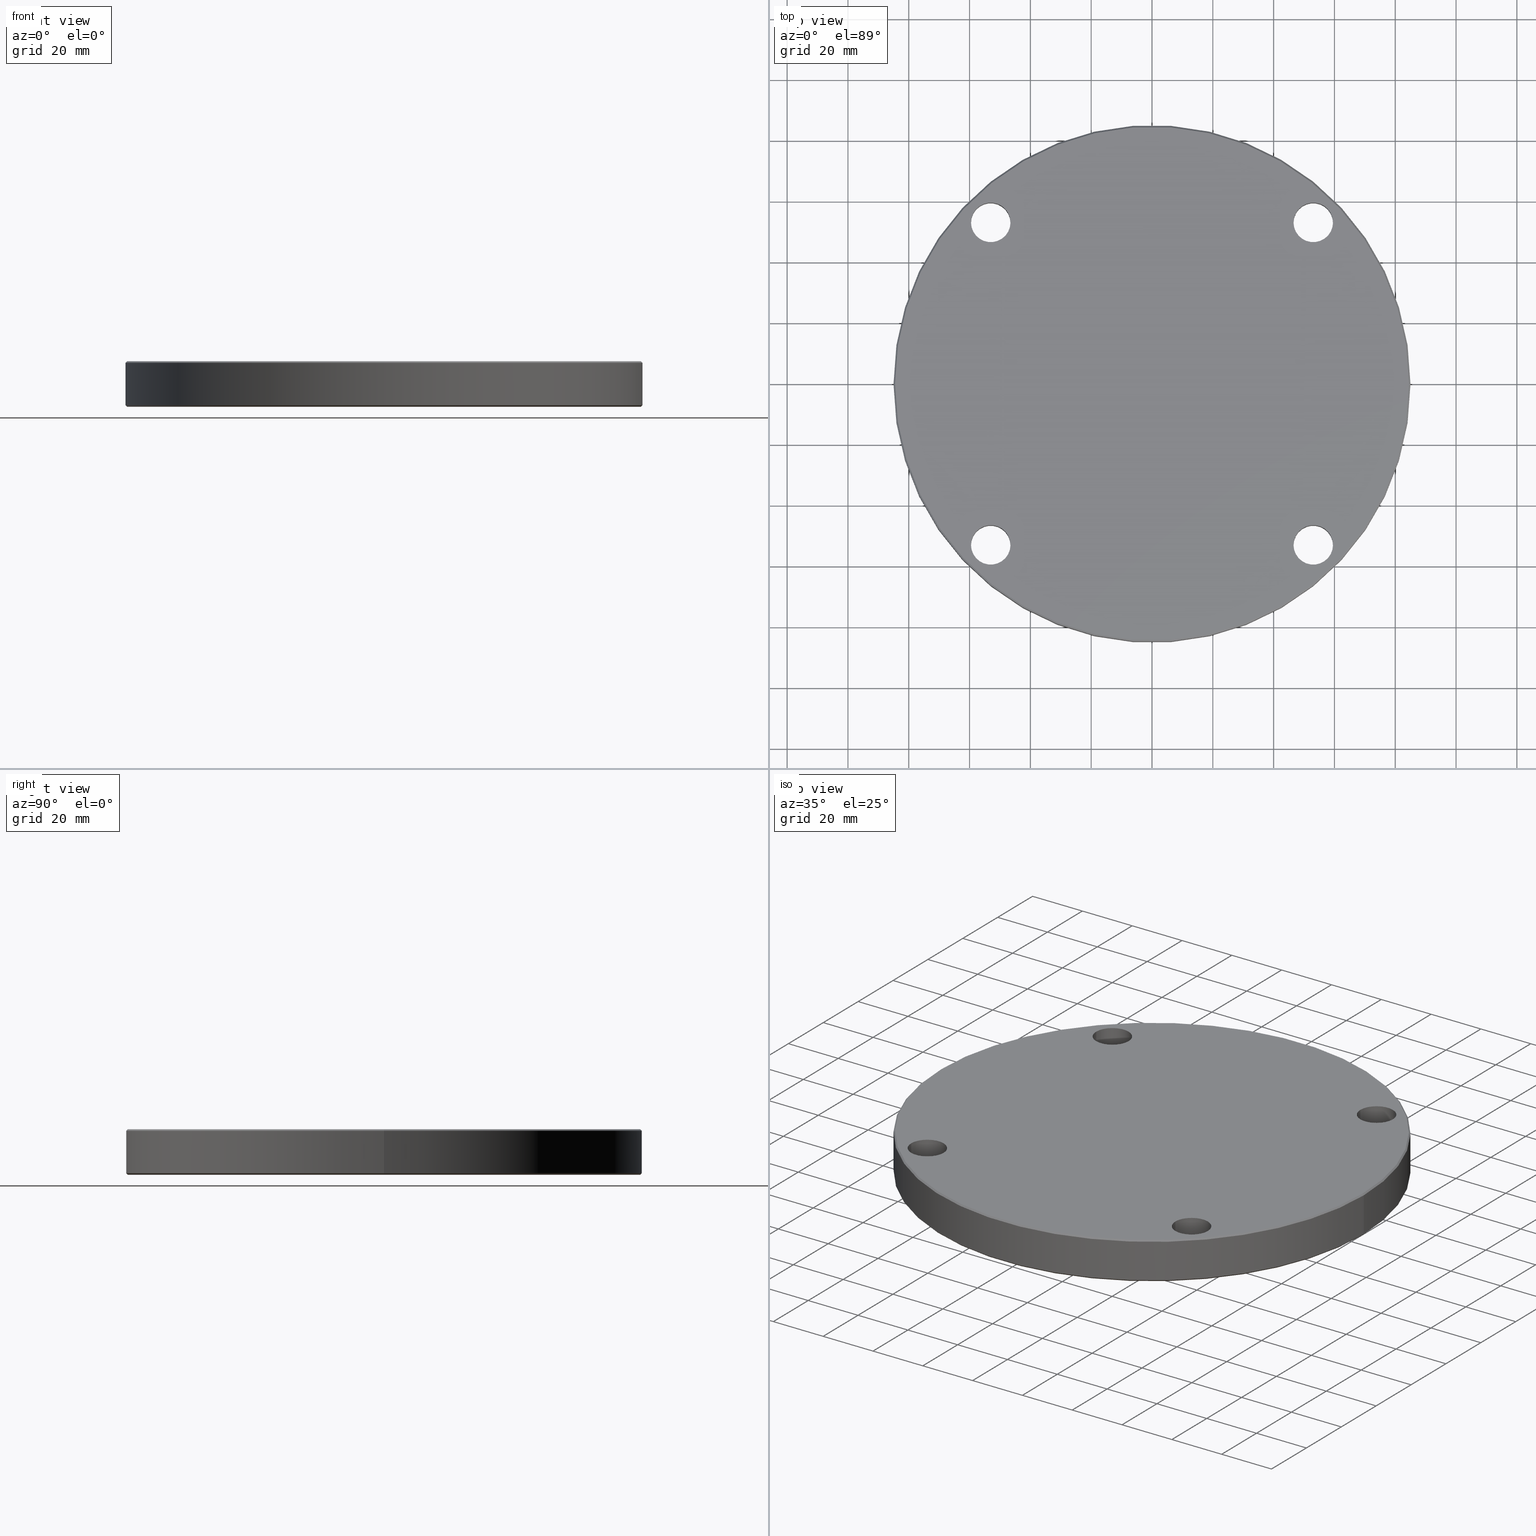
[diagram: canonical four-view strip — front | top / right | iso, engineering-drawing reading convention]
A machine part, canonical four-view strip (front | top / right | iso — engineering-drawing reading convention). The complete STEP part file that produces these views, byte-faithful:
ISO-10303-21;
HEADER;
FILE_DESCRIPTION (( 'STEP AP203' ),
    '1' );
FILE_NAME ('3996-60-20_REV_.step',
    '2026-02-21T22:19:27',
    ( '' ),
    ( '' ),
    'SwSTEP 2.0',
    'SolidWorks 2025',
    '' );
FILE_SCHEMA (( 'CONFIG_CONTROL_DESIGN' ));
ENDSEC;

DATA;
#1 = ORIENTED_EDGE ( 'NONE', *, *, #217, .F. ) ;
#2 = ADVANCED_FACE ( 'NONE', ( #135 ), #247, .T. ) ;
#3 = AXIS2_PLACEMENT_3D ( 'NONE', #526, #42, #129 ) ;
#4 = CARTESIAN_POINT ( 'NONE',  ( -46.53300858899115866, 53.03300858899095971, 15.00000000000000000 ) ) ;
#5 = CIRCLE ( 'NONE', #510, 84.50000000000001421 ) ;
#6 = DIRECTION ( 'NONE',  ( 0.000000000000000000, 0.000000000000000000, 1.000000000000000000 ) ) ;
#7 = CARTESIAN_POINT ( 'NONE',  ( -46.53300858899115866, 53.03300858899095971, 15.00000000000000000 ) ) ;
#8 = CARTESIAN_POINT ( 'NONE',  ( -53.03300858899115156, 53.03300858899095971, 0.000000000000000000 ) ) ;
#9 = FACE_BOUND ( 'NONE', #434, .T. ) ;
#10 = ORIENTED_EDGE ( 'NONE', *, *, #514, .F. ) ;
#11 = DIRECTION ( 'NONE',  ( -0.000000000000000000, -0.000000000000000000, -1.000000000000000000 ) ) ;
#12 = CARTESIAN_POINT ( 'NONE',  ( -53.03300858899114445, -53.03300858899096681, 0.000000000000000000 ) ) ;
#13 = ORIENTED_EDGE ( 'NONE', *, *, #570, .F. ) ;
#14 = DIRECTION ( 'NONE',  ( -0.000000000000000000, -0.000000000000000000, 1.000000000000000000 ) ) ;
#15 = FACE_OUTER_BOUND ( 'NONE', #392, .T. ) ;
#16 = CARTESIAN_POINT ( 'NONE',  ( -53.03300858899114445, -53.03300858899096681, 15.00000000000000000 ) ) ;
#17 = EDGE_CURVE ( 'NONE', #290, #357, #483, .T. ) ;
#18 = DIRECTION ( 'NONE',  ( -0.000000000000000000, -0.000000000000000000, 1.000000000000000000 ) ) ;
#19 = EDGE_CURVE ( 'NONE', #153, #427, #130, .T. ) ;
#20 = PRODUCT_DEFINITION_FORMATION_WITH_SPECIFIED_SOURCE ( 'ANY', '', #74, .NOT_KNOWN. ) ;
#21 = CARTESIAN_POINT ( 'NONE',  ( 0.000000000000000000, 0.000000000000000000, 0.000000000000000000 ) ) ;
#22 = ORIENTED_EDGE ( 'NONE', *, *, #217, .T. ) ;
#23 = APPLICATION_PROTOCOL_DEFINITION ( 'international standard', 'config_control_design', 1994, #160 ) ;
#24 = ORIENTED_EDGE ( 'NONE', *, *, #351, .F. ) ;
#25 = DATE_AND_TIME ( #549, #439 ) ;
#26 = LINE ( 'NONE', #326, #282 ) ;
#27 = EDGE_LOOP ( 'NONE', ( #63, #497, #79, #339 ) ) ;
#28 = CYLINDRICAL_SURFACE ( 'NONE', #192, 6.499999999999999112 ) ;
#29 = CARTESIAN_POINT ( 'NONE',  ( 85.00000000000001421, 1.040949779275250495E-14, 0.5000000000000004441 ) ) ;
#30 = ORIENTED_EDGE ( 'NONE', *, *, #406, .F. ) ;
#31 = CARTESIAN_POINT ( 'NONE',  ( -84.50000000000001421, 1.037888162277381958E-14, 0.000000000000000000 ) ) ;
#32 = EDGE_CURVE ( 'NONE', #530, #472, #394, .T. ) ;
#33 = ORIENTED_EDGE ( 'NONE', *, *, #244, .T. ) ;
#34 = AXIS2_PLACEMENT_3D ( 'NONE', #499, #396, #535 ) ;
#35 = CIRCLE ( 'NONE', #398, 6.499999999999999112 ) ;
#36 = VECTOR ( 'NONE', #11, 1000.000000000000000 ) ;
#37 = DIRECTION ( 'NONE',  ( -0.000000000000000000, -0.000000000000000000, 1.000000000000000000 ) ) ;
#38 = ORIENTED_EDGE ( 'NONE', *, *, #428, .F. ) ;
#39 = CC_DESIGN_PERSON_AND_ORGANIZATION_ASSIGNMENT ( #378, #372, ( #20 ) ) ;
#40 = CARTESIAN_POINT ( 'NONE',  ( -53.03300858899114445, -53.03300858899096681, 15.00000000000000000 ) ) ;
#41 = EDGE_CURVE ( 'NONE', #194, #540, #301, .T. ) ;
#42 = DIRECTION ( 'NONE',  ( 0.000000000000000000, 0.000000000000000000, -1.000000000000000000 ) ) ;
#43 = CARTESIAN_POINT ( 'NONE',  ( -84.49999999999998579, 0.000000000000000000, 15.00000000000000000 ) ) ;
#44 = CARTESIAN_POINT ( 'NONE',  ( 53.03300858899114445, 53.03300858899096681, 0.000000000000000000 ) ) ;
#45 = CIRCLE ( 'NONE', #374, 84.49999999999998579 ) ;
#46 = DIRECTION ( 'NONE',  ( -0.000000000000000000, -0.000000000000000000, -1.000000000000000000 ) ) ;
#47 = DIRECTION ( 'NONE',  ( 0.000000000000000000, 0.000000000000000000, 1.000000000000000000 ) ) ;
#48 = DIRECTION ( 'NONE',  ( 1.000000000000000000, 0.000000000000000000, 0.000000000000000000 ) ) ;
#49 = DIRECTION ( 'NONE',  ( 1.000000000000000000, 0.000000000000000000, 0.000000000000000000 ) ) ;
#50 = DIRECTION ( 'NONE',  ( 0.000000000000000000, 0.000000000000000000, 1.000000000000000000 ) ) ;
#51 = DIRECTION ( 'NONE',  ( 1.000000000000000000, 0.000000000000000000, 0.000000000000000000 ) ) ;
#52 = DIRECTION ( 'NONE',  ( -0.000000000000000000, -0.000000000000000000, 1.000000000000000000 ) ) ;
#53 = CIRCLE ( 'NONE', #304, 84.49999999999998579 ) ;
#54 = DIRECTION ( 'NONE',  ( 1.000000000000000000, 0.000000000000000000, 0.000000000000000000 ) ) ;
#55 = EDGE_CURVE ( 'NONE', #176, #548, #219, .T. ) ;
#56 = DIRECTION ( 'NONE',  ( 1.000000000000000000, 0.000000000000000000, 0.000000000000000000 ) ) ;
#57 = EDGE_CURVE ( 'NONE', #371, #569, #544, .T. ) ;
#58 = DIRECTION ( 'NONE',  ( 1.000000000000000000, 0.000000000000000000, 0.000000000000000000 ) ) ;
#59 = PERSON_AND_ORGANIZATION ( #163, #528 ) ;
#60 = DATE_AND_TIME ( #515, #440 ) ;
#61 = AXIS2_PLACEMENT_3D ( 'NONE', #101, #97, #276 ) ;
#62 = CC_DESIGN_APPROVAL ( #271, ( #362 ) ) ;
#63 = ORIENTED_EDGE ( 'NONE', *, *, #280, .F. ) ;
#64 = DIRECTION ( 'NONE',  ( 0.000000000000000000, 0.000000000000000000, 1.000000000000000000 ) ) ;
#65 = ORIENTED_EDGE ( 'NONE', *, *, #221, .T. ) ;
#66 = APPROVAL_ROLE ( '' ) ;
#67 = DIRECTION ( 'NONE',  ( -0.000000000000000000, -0.000000000000000000, 1.000000000000000000 ) ) ;
#68 = EDGE_LOOP ( 'NONE', ( #65, #121, #33, #10 ) ) ;
#69 = DATE_TIME_ROLE ( 'creation_date' ) ;
#70 = CARTESIAN_POINT ( 'NONE',  ( 0.000000000000000000, 0.000000000000000000, 14.49999999999995737 ) ) ;
#71 = EDGE_LOOP ( 'NONE', ( #330, #556, #465, #38 ) ) ;
#72 = FACE_BOUND ( 'NONE', #82, .T. ) ;
#73 = EDGE_LOOP ( 'NONE', ( #148, #113, #337, #299 ) ) ;
#74 = PRODUCT ( '3996-60-20_REV_', '3996-60-20_REV_', '', ( #332 ) ) ;
#75 = LINE ( 'NONE', #4, #266 ) ;
#76 = EDGE_CURVE ( 'NONE', #424, #530, #45, .T. ) ;
#77 = EDGE_LOOP ( 'NONE', ( #334, #482, #211, #347 ) ) ;
#78 = DIRECTION ( 'NONE',  ( 1.000000000000000000, 0.000000000000000000, 0.000000000000000000 ) ) ;
#79 = ORIENTED_EDGE ( 'NONE', *, *, #474, .T. ) ;
#80 = EDGE_CURVE ( 'NONE', #424, #344, #355, .T. ) ;
#81 = DIRECTION ( 'NONE',  ( 0.000000000000000000, 0.000000000000000000, 1.000000000000000000 ) ) ;
#82 = EDGE_LOOP ( 'NONE', ( #161, #109 ) ) ;
#83 = CARTESIAN_POINT ( 'NONE',  ( 59.53300858899152104, -53.03300858899059023, 15.00000000000000000 ) ) ;
#84 =( LENGTH_UNIT ( ) NAMED_UNIT ( * ) SI_UNIT ( .MILLI., .METRE. ) );
#85 = DIRECTION ( 'NONE',  ( 0.000000000000000000, 0.000000000000000000, 1.000000000000000000 ) ) ;
#86 = CIRCLE ( 'NONE', #418, 6.499999999999999112 ) ;
#87 = VECTOR ( 'NONE', #546, 1000.000000000000114 ) ;
#88 = APPROVAL_PERSON_ORGANIZATION ( #246, #303, #66 ) ;
#89 = UNCERTAINTY_MEASURE_WITH_UNIT (LENGTH_MEASURE( 1.000000000000000082E-05 ), #84, 'distance_accuracy_value', 'NONE');
#90 = ORIENTED_EDGE ( 'NONE', *, *, #413, .F. ) ;
#91 = LINE ( 'NONE', #412, #249 ) ;
#92 = EDGE_CURVE ( 'NONE', #241, #376, #447, .T. ) ;
#93 = CARTESIAN_POINT ( 'NONE',  ( -59.53300858899114445, -53.03300858899096681, 15.00000000000000000 ) ) ;
#94 = CARTESIAN_POINT ( 'NONE',  ( -85.00000000000001421, 1.040949779275250495E-14, 0.5000000000000004441 ) ) ;
#95 = MANIFOLD_SOLID_BREP ( 'Chamfer1', #340 ) ;
#96 = EDGE_CURVE ( 'NONE', #385, #315, #86, .T. ) ;
#97 = DIRECTION ( 'NONE',  ( -0.000000000000000000, -0.000000000000000000, 1.000000000000000000 ) ) ;
#98 = CARTESIAN_POINT ( 'NONE',  ( -53.03300858899114445, -53.03300858899096681, 0.000000000000000000 ) ) ;
#99 = ADVANCED_FACE ( 'NONE', ( #305 ), #494, .T. ) ;
#100 = CIRCLE ( 'NONE', #322, 85.00000000000001421 ) ;
#101 = CARTESIAN_POINT ( 'NONE',  ( 53.03300858899152104, -53.03300858899059023, 15.00000000000000000 ) ) ;
#102 = PERSON_AND_ORGANIZATION_ROLE ( 'classification_officer' ) ;
#103 = DIRECTION ( 'NONE',  ( 0.000000000000000000, 0.000000000000000000, -1.000000000000000000 ) ) ;
#104 = ORIENTED_EDGE ( 'NONE', *, *, #547, .T. ) ;
#105 = PERSON_AND_ORGANIZATION ( #163, #528 ) ;
#106 = AXIS2_PLACEMENT_3D ( 'NONE', #414, #18, #54 ) ;
#107 = AXIS2_PLACEMENT_3D ( 'NONE', #40, #170, #444 ) ;
#108 = ORIENTED_EDGE ( 'NONE', *, *, #451, .T. ) ;
#109 = ORIENTED_EDGE ( 'NONE', *, *, #55, .F. ) ;
#110 = PERSON_AND_ORGANIZATION ( #163, #528 ) ;
#111 = CARTESIAN_POINT ( 'NONE',  ( -53.03300858899114445, -53.03300858899096681, 15.00000000000000000 ) ) ;
#112 = PRODUCT_DEFINITION ( 'UNKNOWN', '', #20, #452 ) ;
#113 = ORIENTED_EDGE ( 'NONE', *, *, #567, .T. ) ;
#114 = FACE_BOUND ( 'NONE', #478, .T. ) ;
#115 = VECTOR ( 'NONE', #310, 1000.000000000000000 ) ;
#116 = ORIENTED_EDGE ( 'NONE', *, *, #41, .T. ) ;
#117 = AXIS2_PLACEMENT_3D ( 'NONE', #454, #502, #275 ) ;
#118 = LINE ( 'NONE', #83, #437 ) ;
#119 = VERTEX_POINT ( 'NONE', #155 ) ;
#120 = CARTESIAN_POINT ( 'NONE',  ( 53.03300858899152104, -53.03300858899059023, 15.00000000000000000 ) ) ;
#121 = ORIENTED_EDGE ( 'NONE', *, *, #531, .T. ) ;
#122 = DIRECTION ( 'NONE',  ( 1.000000000000000000, 0.000000000000000000, 0.000000000000000000 ) ) ;
#123 = CARTESIAN_POINT ( 'NONE',  ( 53.03300858899114445, 53.03300858899096681, 15.00000000000000000 ) ) ;
#124 = CIRCLE ( 'NONE', #496, 6.499999999999999112 ) ;
#125 = DIRECTION ( 'NONE',  ( 1.000000000000000000, 0.000000000000000000, 0.000000000000000000 ) ) ;
#126 = ORIENTED_EDGE ( 'NONE', *, *, #474, .F. ) ;
#127 = DIRECTION ( 'NONE',  ( -0.000000000000000000, -0.000000000000000000, 1.000000000000000000 ) ) ;
#128 = DIRECTION ( 'NONE',  ( 0.7071067811865378028, 8.659560562354814529E-17, -0.7071067811865573427 ) ) ;
#129 = DIRECTION ( 'NONE',  ( -1.000000000000000000, 0.000000000000000000, 0.000000000000000000 ) ) ;
#130 = CIRCLE ( 'NONE', #142, 6.499999999999999112 ) ;
#131 = EDGE_CURVE ( 'NONE', #153, #290, #26, .T. ) ;
#132 = CIRCLE ( 'NONE', #107, 6.499999999999999112 ) ;
#133 = CARTESIAN_POINT ( 'NONE',  ( 53.03300858899114445, 53.03300858899096681, 15.00000000000000000 ) ) ;
#134 = AXIS2_PLACEMENT_3D ( 'NONE', #264, #178, #56 ) ;
#135 = FACE_OUTER_BOUND ( 'NONE', #77, .T. ) ;
#136 = CARTESIAN_POINT ( 'NONE',  ( 0.000000000000000000, 0.000000000000000000, 0.000000000000000000 ) ) ;
#137 = ADVANCED_FACE ( 'NONE', ( #455 ), #336, .F. ) ;
#138 = DIRECTION ( 'NONE',  ( 0.000000000000000000, 0.000000000000000000, 1.000000000000000000 ) ) ;
#139 = ADVANCED_FACE ( 'NONE', ( #409 ), #317, .F. ) ;
#140 = FACE_OUTER_BOUND ( 'NONE', #328, .T. ) ;
#141 = CYLINDRICAL_SURFACE ( 'NONE', #342, 6.499999999999999112 ) ;
#142 = AXIS2_PLACEMENT_3D ( 'NONE', #44, #85, #308 ) ;
#143 = PERSON_AND_ORGANIZATION ( #163, #528 ) ;
#144 = AXIS2_PLACEMENT_3D ( 'NONE', #120, #37, #78 ) ;
#145 = VECTOR ( 'NONE', #127, 1000.000000000000000 ) ;
#146 = DIRECTION ( 'NONE',  ( -0.000000000000000000, -0.000000000000000000, 1.000000000000000000 ) ) ;
#147 = ORIENTED_EDGE ( 'NONE', *, *, #351, .T. ) ;
#148 = ORIENTED_EDGE ( 'NONE', *, *, #507, .F. ) ;
#149 = CALENDAR_DATE ( 2026, 22, 2 ) ;
#150 = ORIENTED_EDGE ( 'NONE', *, *, #76, .F. ) ;
#151 = DIRECTION ( 'NONE',  ( 1.000000000000000000, 0.000000000000000000, 0.000000000000000000 ) ) ;
#152 = AXIS2_PLACEMENT_3D ( 'NONE', #565, #81, #125 ) ;
#153 = VERTEX_POINT ( 'NONE', #462 ) ;
#154 = PERSON_AND_ORGANIZATION_ROLE ( 'creator' ) ;
#155 = CARTESIAN_POINT ( 'NONE',  ( -46.53300858899115156, -53.03300858899096681, 0.000000000000000000 ) ) ;
#156 = EDGE_CURVE ( 'NONE', #385, #176, #382, .T. ) ;
#157 = ORIENTED_EDGE ( 'NONE', *, *, #80, .T. ) ;
#158 = ADVANCED_FACE ( 'NONE', ( #384 ), #320, .F. ) ;
#159 = CARTESIAN_POINT ( 'NONE',  ( 0.000000000000000000, 0.000000000000000000, 0.5000000000000004441 ) ) ;
#160 = APPLICATION_CONTEXT ( 'configuration controlled 3d designs of mechanical parts and assemblies' ) ;
#161 = ORIENTED_EDGE ( 'NONE', *, *, #363, .F. ) ;
#162 = DIRECTION ( 'NONE',  ( 0.000000000000000000, 0.000000000000000000, 1.000000000000000000 ) ) ;
#163 = PERSON ( 'UNSPECIFIED', 'UNSPECIFIED', 'UNSPECIFIED', ('UNSPECIFIED'), ('UNSPECIFIED'), ('UNSPECIFIED') ) ;
#164 = VERTEX_POINT ( 'NONE', #93 ) ;
#165 = CC_DESIGN_APPROVAL ( #303, ( #20 ) ) ;
#166 = DIRECTION ( 'NONE',  ( 1.000000000000000000, 0.000000000000000000, 0.000000000000000000 ) ) ;
#167 = EDGE_LOOP ( 'NONE', ( #533, #560 ) ) ;
#168 = CARTESIAN_POINT ( 'NONE',  ( -53.03300858899115156, 53.03300858899095971, 15.00000000000000000 ) ) ;
#169 = CARTESIAN_POINT ( 'NONE',  ( -84.49999999999998579, 0.000000000000000000, 15.00000000000000000 ) ) ;
#170 = DIRECTION ( 'NONE',  ( -0.000000000000000000, -0.000000000000000000, 1.000000000000000000 ) ) ;
#171 = VERTEX_POINT ( 'NONE', #228 ) ;
#172 = CIRCLE ( 'NONE', #152, 6.499999999999999112 ) ;
#173 = DIRECTION ( 'NONE',  ( -0.000000000000000000, -0.000000000000000000, 1.000000000000000000 ) ) ;
#174 = ORIENTED_EDGE ( 'NONE', *, *, #387, .T. ) ;
#175 = DIRECTION ( 'NONE',  ( 1.000000000000000000, 0.000000000000000000, 0.000000000000000000 ) ) ;
#176 = VERTEX_POINT ( 'NONE', #243 ) ;
#177 = ADVANCED_FACE ( 'NONE', ( #473 ), #545, .T. ) ;
#178 = DIRECTION ( 'NONE',  ( 0.000000000000000000, 0.000000000000000000, -1.000000000000000000 ) ) ;
#179 = EDGE_LOOP ( 'NONE', ( #174, #443 ) ) ;
#180 = AXIS2_PLACEMENT_3D ( 'NONE', #12, #186, #58 ) ;
#181 = AXIS2_PLACEMENT_3D ( 'NONE', #98, #498, #48 ) ;
#182 = CARTESIAN_POINT ( 'NONE',  ( -59.53300858899114445, -53.03300858899096681, 0.000000000000000000 ) ) ;
#183 = AXIS2_PLACEMENT_3D ( 'NONE', #133, #233, #175 ) ;
#184 = CARTESIAN_POINT ( 'NONE',  ( 0.000000000000000000, 0.000000000000000000, 15.00000000000000000 ) ) ;
#185 = FACE_OUTER_BOUND ( 'NONE', #68, .T. ) ;
#186 = DIRECTION ( 'NONE',  ( 0.000000000000000000, 0.000000000000000000, 1.000000000000000000 ) ) ;
#187 = ORIENTED_EDGE ( 'NONE', *, *, #41, .F. ) ;
#188 = COORDINATED_UNIVERSAL_TIME_OFFSET ( 10, 0, .AHEAD. ) ;
#189 = DIRECTION ( 'NONE',  ( 1.000000000000000000, 0.000000000000000000, 0.000000000000000000 ) ) ;
#190 = AXIS2_PLACEMENT_3D ( 'NONE', #257, #405, #402 ) ;
#191 = SHAPE_DEFINITION_REPRESENTATION ( #425, #403 ) ;
#192 = AXIS2_PLACEMENT_3D ( 'NONE', #234, #369, #426 ) ;
#193 = CIRCLE ( 'NONE', #183, 6.499999999999999112 ) ;
#194 = VERTEX_POINT ( 'NONE', #201 ) ;
#195 = APPLICATION_PROTOCOL_DEFINITION ( 'international standard', 'config_control_design', 1994, #232 ) ;
#196 = VERTEX_POINT ( 'NONE', #555 ) ;
#197 = COORDINATED_UNIVERSAL_TIME_OFFSET ( 10, 0, .AHEAD. ) ;
#198 = ORIENTED_EDGE ( 'NONE', *, *, #387, .F. ) ;
#199 = ADVANCED_FACE ( 'NONE', ( #431 ), #28, .F. ) ;
#200 = SECURITY_CLASSIFICATION_LEVEL ( 'unclassified' ) ;
#201 = CARTESIAN_POINT ( 'NONE',  ( 46.53300858899152104, -53.03300858899059023, 0.000000000000000000 ) ) ;
#202 = AXIS2_PLACEMENT_3D ( 'NONE', #309, #46, #364 ) ;
#203 = ADVANCED_FACE ( 'NONE', ( #15 ), #141, .F. ) ;
#204 = ORIENTED_EDGE ( 'NONE', *, *, #260, .T. ) ;
#205 = CARTESIAN_POINT ( 'NONE',  ( 46.53300858899115156, 53.03300858899096681, 15.00000000000000000 ) ) ;
#206 = EDGE_LOOP ( 'NONE', ( #566, #513 ) ) ;
#207 = CARTESIAN_POINT ( 'NONE',  ( 0.000000000000000000, 0.000000000000000000, 0.5000000000000004441 ) ) ;
#208 = ORIENTED_EDGE ( 'NONE', *, *, #262, .F. ) ;
#209 = CARTESIAN_POINT ( 'NONE',  ( 0.000000000000000000, 0.000000000000000000, 15.00000000000000000 ) ) ;
#210 = VECTOR ( 'NONE', #128, 1000.000000000000000 ) ;
#211 = ORIENTED_EDGE ( 'NONE', *, *, #221, .F. ) ;
#212 = CC_DESIGN_APPROVAL ( #490, ( #112 ) ) ;
#213 = DIRECTION ( 'NONE',  ( -0.000000000000000000, -0.000000000000000000, 1.000000000000000000 ) ) ;
#214 = DIRECTION ( 'NONE',  ( 1.000000000000000000, 0.000000000000000000, 0.000000000000000000 ) ) ;
#215 = FACE_BOUND ( 'NONE', #294, .T. ) ;
#216 = ORIENTED_EDGE ( 'NONE', *, *, #428, .T. ) ;
#217 = EDGE_CURVE ( 'NONE', #553, #119, #380, .T. ) ;
#218 = CARTESIAN_POINT ( 'NONE',  ( 46.53300858899115156, 53.03300858899096681, 0.000000000000000000 ) ) ;
#219 = CIRCLE ( 'NONE', #34, 6.499999999999999112 ) ;
#220 = DIRECTION ( 'NONE',  ( 1.000000000000000000, 0.000000000000000000, 0.000000000000000000 ) ) ;
#221 = EDGE_CURVE ( 'NONE', #344, #472, #100, .T. ) ;
#222 = CYLINDRICAL_SURFACE ( 'NONE', #430, 6.499999999999999112 ) ;
#223 = EDGE_CURVE ( 'NONE', #540, #194, #35, .T. ) ;
#224 = DIRECTION ( 'NONE',  ( -0.000000000000000000, -0.000000000000000000, 1.000000000000000000 ) ) ;
#225 = DIRECTION ( 'NONE',  ( 1.000000000000000000, 0.000000000000000000, 0.000000000000000000 ) ) ;
#226 = ORIENTED_EDGE ( 'NONE', *, *, #17, .T. ) ;
#227 = CARTESIAN_POINT ( 'NONE',  ( 85.00000000000001421, 1.040949779275250495E-14, 14.49999999999995737 ) ) ;
#228 = CARTESIAN_POINT ( 'NONE',  ( -85.00000000000001421, 0.000000000000000000, 0.5000000000000004441 ) ) ;
#229 = APPROVAL_PERSON_ORGANIZATION ( #143, #490, #463 ) ;
#230 = FACE_OUTER_BOUND ( 'NONE', #71, .T. ) ;
#231 = DIRECTION ( 'NONE',  ( 1.000000000000000000, 0.000000000000000000, 0.000000000000000000 ) ) ;
#232 = APPLICATION_CONTEXT ( 'configuration controlled 3d designs of mechanical parts and assemblies' ) ;
#233 = DIRECTION ( 'NONE',  ( -0.000000000000000000, -0.000000000000000000, 1.000000000000000000 ) ) ;
#234 = CARTESIAN_POINT ( 'NONE',  ( 53.03300858899114445, 53.03300858899096681, 15.00000000000000000 ) ) ;
#235 = PERSON_AND_ORGANIZATION ( #163, #528 ) ;
#236 = AXIS2_PLACEMENT_3D ( 'NONE', #488, #297, #559 ) ;
#237 = EDGE_CURVE ( 'NONE', #427, #357, #248, .T. ) ;
#238 = ORIENTED_EDGE ( 'NONE', *, *, #363, .T. ) ;
#239 = APPROVAL_STATUS ( 'not_yet_approved' ) ;
#240 = CC_DESIGN_DATE_AND_TIME_ASSIGNMENT ( #25, #69, ( #112 ) ) ;
#241 = VERTEX_POINT ( 'NONE', #273 ) ;
#242 = COORDINATED_UNIVERSAL_TIME_OFFSET ( 10, 0, .AHEAD. ) ;
#243 = CARTESIAN_POINT ( 'NONE',  ( -59.53300858899115156, 53.03300858899095971, 15.00000000000000000 ) ) ;
#244 = EDGE_CURVE ( 'NONE', #296, #171, #293, .T. ) ;
#245 = ORIENTED_EDGE ( 'NONE', *, *, #32, .F. ) ;
#246 = PERSON_AND_ORGANIZATION ( #163, #528 ) ;
#247 = CONICAL_SURFACE ( 'NONE', #3, 84.49999999999998579, 0.7853981633974346233 ) ;
#248 = LINE ( 'NONE', #205, #508 ) ;
#249 = VECTOR ( 'NONE', #52, 1000.000000000000000 ) ;
#250 = ORIENTED_EDGE ( 'NONE', *, *, #451, .F. ) ;
#251 = DIRECTION ( 'NONE',  ( -0.000000000000000000, -0.000000000000000000, -1.000000000000000000 ) ) ;
#252 = EDGE_LOOP ( 'NONE', ( #1, #379, #558, #126 ) ) ;
#253 = PLANE ( 'NONE',  #312 ) ;
#254 = ORIENTED_EDGE ( 'NONE', *, *, #567, .F. ) ;
#255 = CARTESIAN_POINT ( 'NONE',  ( 59.53300858899114445, 53.03300858899096681, 15.00000000000000000 ) ) ;
#256 = AXIS2_PLACEMENT_3D ( 'NONE', #442, #438, #386 ) ;
#257 = CARTESIAN_POINT ( 'NONE',  ( 0.000000000000000000, 0.000000000000000000, 0.000000000000000000 ) ) ;
#258 = LINE ( 'NONE', #349, #520 ) ;
#259 = ORIENTED_EDGE ( 'NONE', *, *, #319, .F. ) ;
#260 = EDGE_CURVE ( 'NONE', #241, #296, #459, .T. ) ;
#261 = CYLINDRICAL_SURFACE ( 'NONE', #256, 6.499999999999999112 ) ;
#262 = EDGE_CURVE ( 'NONE', #569, #371, #302, .T. ) ;
#263 = EDGE_LOOP ( 'NONE', ( #187, #327, #366, #24 ) ) ;
#264 = CARTESIAN_POINT ( 'NONE',  ( 0.000000000000000000, 0.000000000000000000, 14.49999999999995737 ) ) ;
#265 = DIRECTION ( 'NONE',  ( -0.000000000000000000, -0.000000000000000000, 1.000000000000000000 ) ) ;
#266 = VECTOR ( 'NONE', #173, 1000.000000000000000 ) ;
#267 = DIRECTION ( 'NONE',  ( 1.000000000000000000, 0.000000000000000000, 0.000000000000000000 ) ) ;
#268 = CARTESIAN_POINT ( 'NONE',  ( 84.49999999999998579, 1.034826545279513264E-14, 15.00000000000000000 ) ) ;
#269 = CYLINDRICAL_SURFACE ( 'NONE', #202, 85.00000000000001421 ) ;
#270 = DIRECTION ( 'NONE',  ( 1.000000000000000000, 0.000000000000000000, 0.000000000000000000 ) ) ;
#271 = APPROVAL ( #288, 'UNSPECIFIED' ) ;
#272 = FACE_OUTER_BOUND ( 'NONE', #27, .T. ) ;
#273 = CARTESIAN_POINT ( 'NONE',  ( 84.50000000000001421, 0.000000000000000000, 0.000000000000000000 ) ) ;
#274 = AXIS2_PLACEMENT_3D ( 'NONE', #278, #373, #270 ) ;
#275 = DIRECTION ( 'NONE',  ( 1.000000000000000000, 0.000000000000000000, -0.000000000000000000 ) ) ;
#276 = DIRECTION ( 'NONE',  ( 1.000000000000000000, 0.000000000000000000, 0.000000000000000000 ) ) ;
#277 = COORDINATED_UNIVERSAL_TIME_OFFSET ( 10, 0, .AHEAD. ) ;
#278 = CARTESIAN_POINT ( 'NONE',  ( 53.03300858899152104, -53.03300858899059023, 15.00000000000000000 ) ) ;
#279 = ORIENTED_EDGE ( 'NONE', *, *, #92, .F. ) ;
#280 = EDGE_CURVE ( 'NONE', #553, #164, #258, .T. ) ;
#281 = ORIENTED_EDGE ( 'NONE', *, *, #57, .F. ) ;
#282 = VECTOR ( 'NONE', #506, 1000.000000000000000 ) ;
#283 = COORDINATED_UNIVERSAL_TIME_OFFSET ( 10, 0, .AHEAD. ) ;
#284 = AXIS2_PLACEMENT_3D ( 'NONE', #111, #67, #231 ) ;
#285 = AXIS2_PLACEMENT_3D ( 'NONE', #207, #295, #479 ) ;
#286 = ORIENTED_EDGE ( 'NONE', *, *, #19, .T. ) ;
#287 = ORIENTED_EDGE ( 'NONE', *, *, #507, .T. ) ;
#288 = APPROVAL_STATUS ( 'not_yet_approved' ) ;
#289 = DIRECTION ( 'NONE',  ( -0.000000000000000000, -0.000000000000000000, 1.000000000000000000 ) ) ;
#290 = VERTEX_POINT ( 'NONE', #255 ) ;
#291 = AXIS2_PLACEMENT_3D ( 'NONE', #453, #224, #220 ) ;
#292 = DIRECTION ( 'NONE',  ( -0.000000000000000000, -0.000000000000000000, 1.000000000000000000 ) ) ;
#293 = CIRCLE ( 'NONE', #484, 85.00000000000001421 ) ;
#294 = EDGE_LOOP ( 'NONE', ( #259, #468 ) ) ;
#295 = DIRECTION ( 'NONE',  ( -0.000000000000000000, -0.000000000000000000, 1.000000000000000000 ) ) ;
#296 = VERTEX_POINT ( 'NONE', #29 ) ;
#297 = DIRECTION ( 'NONE',  ( -0.000000000000000000, -0.000000000000000000, 1.000000000000000000 ) ) ;
#298 = ADVANCED_FACE ( 'NONE', ( #523 ), #261, .F. ) ;
#299 = ORIENTED_EDGE ( 'NONE', *, *, #260, .F. ) ;
#300 = CARTESIAN_POINT ( 'NONE',  ( -46.53300858899115866, 53.03300858899095971, 0.000000000000000000 ) ) ;
#301 = CIRCLE ( 'NONE', #476, 6.499999999999999112 ) ;
#302 = CIRCLE ( 'NONE', #144, 6.499999999999999112 ) ;
#303 = APPROVAL ( #464, 'UNSPECIFIED' ) ;
#304 = AXIS2_PLACEMENT_3D ( 'NONE', #209, #50, #225 ) ;
#305 = FACE_OUTER_BOUND ( 'NONE', #375, .T. ) ;
#306 = EDGE_CURVE ( 'NONE', #164, #196, #495, .T. ) ;
#307 = DIRECTION ( 'NONE',  ( -0.000000000000000000, -0.000000000000000000, 1.000000000000000000 ) ) ;
#308 = DIRECTION ( 'NONE',  ( 1.000000000000000000, 0.000000000000000000, 0.000000000000000000 ) ) ;
#309 = CARTESIAN_POINT ( 'NONE',  ( 0.000000000000000000, 0.000000000000000000, 15.00000000000000000 ) ) ;
#310 = DIRECTION ( 'NONE',  ( -0.7071067811865378028, 0.000000000000000000, -0.7071067811865573427 ) ) ;
#311 = ORIENTED_EDGE ( 'NONE', *, *, #531, .F. ) ;
#312 = AXIS2_PLACEMENT_3D ( 'NONE', #481, #162, #346 ) ;
#313 = APPROVAL_PERSON_ORGANIZATION ( #110, #271, #429 ) ;
#314 = CARTESIAN_POINT ( 'NONE',  ( 59.53300858899152104, -53.03300858899059023, 0.000000000000000000 ) ) ;
#315 = VERTEX_POINT ( 'NONE', #300 ) ;
#316 = LINE ( 'NONE', #94, #466 ) ;
#317 = CYLINDRICAL_SURFACE ( 'NONE', #61, 6.499999999999999112 ) ;
#318 = FACE_BOUND ( 'NONE', #179, .T. ) ;
#319 = EDGE_CURVE ( 'NONE', #196, #164, #132, .T. ) ;
#320 = CYLINDRICAL_SURFACE ( 'NONE', #284, 6.499999999999999112 ) ;
#321 = EDGE_LOOP ( 'NONE', ( #537, #198, #216, #238 ) ) ;
#322 = AXIS2_PLACEMENT_3D ( 'NONE', #70, #416, #539 ) ;
#323 = VECTOR ( 'NONE', #493, 1000.000000000000000 ) ;
#324 = CALENDAR_DATE ( 2026, 22, 2 ) ;
#325 = ADVANCED_FACE ( 'NONE', ( #521 ), #562, .T. ) ;
#326 = CARTESIAN_POINT ( 'NONE',  ( 59.53300858899114445, 53.03300858899096681, 15.00000000000000000 ) ) ;
#327 = ORIENTED_EDGE ( 'NONE', *, *, #570, .T. ) ;
#328 = EDGE_LOOP ( 'NONE', ( #353, #287 ) ) ;
#329 = PERSON_AND_ORGANIZATION_ROLE ( 'design_supplier' ) ;
#330 = ORIENTED_EDGE ( 'NONE', *, *, #96, .F. ) ;
#331 = CIRCLE ( 'NONE', #408, 6.499999999999999112 ) ;
#332 = MECHANICAL_CONTEXT ( 'NONE', #232, 'mechanical' ) ;
#333 = CIRCLE ( 'NONE', #181, 6.499999999999999112 ) ;
#334 = ORIENTED_EDGE ( 'NONE', *, *, #432, .F. ) ;
#335 = DATE_TIME_ROLE ( 'classification_date' ) ;
#336 = CYLINDRICAL_SURFACE ( 'NONE', #274, 6.499999999999999112 ) ;
#337 = ORIENTED_EDGE ( 'NONE', *, *, #244, .F. ) ;
#338 = DIRECTION ( 'NONE',  ( -0.000000000000000000, -0.000000000000000000, 1.000000000000000000 ) ) ;
#339 = ORIENTED_EDGE ( 'NONE', *, *, #319, .T. ) ;
#340 = CLOSED_SHELL ( 'NONE', ( #2, #177, #139, #158, #529, #199, #492, #370, #345, #552, #203, #298, #471, #137, #325, #99 ) ) ;
#341 = FACE_BOUND ( 'NONE', #206, .T. ) ;
#342 = AXIS2_PLACEMENT_3D ( 'NONE', #516, #557, #51 ) ;
#343 = AXIS2_PLACEMENT_3D ( 'NONE', #21, #64, #151 ) ;
#344 = VERTEX_POINT ( 'NONE', #518 ) ;
#345 = ADVANCED_FACE ( 'NONE', ( #393, #114, #215, #72, #341 ), #253, .T. ) ;
#346 = DIRECTION ( 'NONE',  ( 1.000000000000000000, 0.000000000000000000, -0.000000000000000000 ) ) ;
#347 = ORIENTED_EDGE ( 'NONE', *, *, #80, .F. ) ;
#348 = CC_DESIGN_PERSON_AND_ORGANIZATION_ASSIGNMENT ( #59, #154, ( #112 ) ) ;
#349 = CARTESIAN_POINT ( 'NONE',  ( -59.53300858899114445, -53.03300858899096681, 15.00000000000000000 ) ) ;
#350 = ORIENTED_EDGE ( 'NONE', *, *, #457, .T. ) ;
#351 = EDGE_CURVE ( 'NONE', #540, #569, #118, .T. ) ;
#352 = DIRECTION ( 'NONE',  ( -1.000000000000000000, 0.000000000000000000, 0.000000000000000000 ) ) ;
#353 = ORIENTED_EDGE ( 'NONE', *, *, #92, .T. ) ;
#354 = LINE ( 'NONE', #532, #145 ) ;
#355 = LINE ( 'NONE', #169, #115 ) ;
#356 = FACE_BOUND ( 'NONE', #419, .T. ) ;
#357 = VERTEX_POINT ( 'NONE', #568 ) ;
#358 = DIRECTION ( 'NONE',  ( -0.000000000000000000, -0.000000000000000000, -1.000000000000000000 ) ) ;
#359 = AXIS2_PLACEMENT_3D ( 'NONE', #123, #265, #361 ) ;
#360 = AXIS2_PLACEMENT_3D ( 'NONE', #435, #292, #122 ) ;
#361 = DIRECTION ( 'NONE',  ( 1.000000000000000000, 0.000000000000000000, 0.000000000000000000 ) ) ;
#362 = SECURITY_CLASSIFICATION ( '', '', #200 ) ;
#363 = EDGE_CURVE ( 'NONE', #548, #176, #331, .T. ) ;
#364 = DIRECTION ( 'NONE',  ( -1.000000000000000000, 0.000000000000000000, 0.000000000000000000 ) ) ;
#365 = DIRECTION ( 'NONE',  ( 1.000000000000000000, 0.000000000000000000, 0.000000000000000000 ) ) ;
#366 = ORIENTED_EDGE ( 'NONE', *, *, #57, .T. ) ;
#367 = DIRECTION ( 'NONE',  ( 1.000000000000000000, 0.000000000000000000, 0.000000000000000000 ) ) ;
#368 = CC_DESIGN_PERSON_AND_ORGANIZATION_ASSIGNMENT ( #467, #469, ( #74 ) ) ;
#369 = DIRECTION ( 'NONE',  ( -0.000000000000000000, -0.000000000000000000, 1.000000000000000000 ) ) ;
#370 = ADVANCED_FACE ( 'NONE', ( #389 ), #525, .T. ) ;
#371 = VERTEX_POINT ( 'NONE', #571 ) ;
#372 = PERSON_AND_ORGANIZATION_ROLE ( 'creator' ) ;
#373 = DIRECTION ( 'NONE',  ( -0.000000000000000000, -0.000000000000000000, 1.000000000000000000 ) ) ;
#374 = AXIS2_PLACEMENT_3D ( 'NONE', #400, #6, #49 ) ;
#375 = EDGE_LOOP ( 'NONE', ( #245, #150, #157, #250 ) ) ;
#376 = VERTEX_POINT ( 'NONE', #31 ) ;
#377 = APPROVAL_DATE_TIME ( #60, #490 ) ;
#378 = PERSON_AND_ORGANIZATION ( #163, #528 ) ;
#379 = ORIENTED_EDGE ( 'NONE', *, *, #280, .T. ) ;
#380 = CIRCLE ( 'NONE', #180, 6.499999999999999112 ) ;
#381 = DATE_AND_TIME ( #551, #410 ) ;
#382 = LINE ( 'NONE', #470, #390 ) ;
#383 = ORIENTED_EDGE ( 'NONE', *, *, #237, .F. ) ;
#384 = FACE_OUTER_BOUND ( 'NONE', #252, .T. ) ;
#385 = VERTEX_POINT ( 'NONE', #433 ) ;
#386 = DIRECTION ( 'NONE',  ( 1.000000000000000000, 0.000000000000000000, 0.000000000000000000 ) ) ;
#387 = EDGE_CURVE ( 'NONE', #315, #385, #124, .T. ) ;
#388 = ORIENTED_EDGE ( 'NONE', *, *, #406, .T. ) ;
#389 = FACE_OUTER_BOUND ( 'NONE', #519, .T. ) ;
#390 = VECTOR ( 'NONE', #146, 1000.000000000000000 ) ;
#391 = CC_DESIGN_SECURITY_CLASSIFICATION ( #362, ( #20 ) ) ;
#392 = EDGE_LOOP ( 'NONE', ( #383, #550, #421, #226 ) ) ;
#393 = FACE_OUTER_BOUND ( 'NONE', #167, .T. ) ;
#394 = LINE ( 'NONE', #268, #210 ) ;
#395 = CARTESIAN_POINT ( 'NONE',  ( 0.000000000000000000, 0.000000000000000000, 15.00000000000000000 ) ) ;
#396 = DIRECTION ( 'NONE',  ( -0.000000000000000000, -0.000000000000000000, 1.000000000000000000 ) ) ;
#397 = DIRECTION ( 'NONE',  ( 0.000000000000000000, 0.000000000000000000, 1.000000000000000000 ) ) ;
#398 = AXIS2_PLACEMENT_3D ( 'NONE', #501, #138, #365 ) ;
#399 =( GEOMETRIC_REPRESENTATION_CONTEXT ( 3 ) GLOBAL_UNCERTAINTY_ASSIGNED_CONTEXT ( ( #89 ) ) GLOBAL_UNIT_ASSIGNED_CONTEXT ( ( #84, #511, #554 ) ) REPRESENTATION_CONTEXT ( 'NONE', 'WORKASPACE' ) );
#400 = CARTESIAN_POINT ( 'NONE',  ( 0.000000000000000000, 0.000000000000000000, 15.00000000000000000 ) ) ;
#401 = CARTESIAN_POINT ( 'NONE',  ( 84.49999999999998579, 1.037888162277381958E-14, 15.00000000000000000 ) ) ;
#402 = DIRECTION ( 'NONE',  ( 1.000000000000000000, 0.000000000000000000, 0.000000000000000000 ) ) ;
#403 = ADVANCED_BREP_SHAPE_REPRESENTATION ( '3996-60-20_REV_', ( #95, #343 ), #399 ) ;
#404 = FACE_BOUND ( 'NONE', #524, .T. ) ;
#405 = DIRECTION ( 'NONE',  ( -0.000000000000000000, -0.000000000000000000, -1.000000000000000000 ) ) ;
#406 = EDGE_CURVE ( 'NONE', #427, #153, #172, .T. ) ;
#407 = LINE ( 'NONE', #538, #36 ) ;
#408 = AXIS2_PLACEMENT_3D ( 'NONE', #168, #307, #166 ) ;
#409 = FACE_OUTER_BOUND ( 'NONE', #263, .T. ) ;
#410 = LOCAL_TIME ( 9, 19, 27.00000000000000000, #277 ) ;
#411 = CC_DESIGN_PERSON_AND_ORGANIZATION_ASSIGNMENT ( #105, #102, ( #362 ) ) ;
#412 = CARTESIAN_POINT ( 'NONE',  ( -46.53300858899115156, -53.03300858899096681, 15.00000000000000000 ) ) ;
#413 = EDGE_CURVE ( 'NONE', #171, #296, #486, .T. ) ;
#414 = CARTESIAN_POINT ( 'NONE',  ( 0.000000000000000000, 0.000000000000000000, 0.5000000000000004441 ) ) ;
#415 = CARTESIAN_POINT ( 'NONE',  ( 59.53300858899152104, -53.03300858899059023, 15.00000000000000000 ) ) ;
#416 = DIRECTION ( 'NONE',  ( 0.000000000000000000, 0.000000000000000000, -1.000000000000000000 ) ) ;
#417 = APPROVAL_DATE_TIME ( #505, #271 ) ;
#418 = AXIS2_PLACEMENT_3D ( 'NONE', #8, #487, #214 ) ;
#419 = EDGE_LOOP ( 'NONE', ( #522, #116 ) ) ;
#420 = LOCAL_TIME ( 9, 19, 27.00000000000000000, #242 ) ;
#421 = ORIENTED_EDGE ( 'NONE', *, *, #131, .T. ) ;
#422 = PRODUCT_RELATED_PRODUCT_CATEGORY ( 'detail', '', ( #74 ) ) ;
#423 = APPROVAL_DATE_TIME ( #543, #303 ) ;
#424 = VERTEX_POINT ( 'NONE', #43 ) ;
#425 = PRODUCT_DEFINITION_SHAPE ( 'NONE', 'NONE',  #112 ) ;
#426 = DIRECTION ( 'NONE',  ( 1.000000000000000000, 0.000000000000000000, 0.000000000000000000 ) ) ;
#427 = VERTEX_POINT ( 'NONE', #218 ) ;
#428 = EDGE_CURVE ( 'NONE', #315, #548, #75, .T. ) ;
#429 = APPROVAL_ROLE ( '' ) ;
#430 = AXIS2_PLACEMENT_3D ( 'NONE', #446, #536, #367 ) ;
#431 = FACE_OUTER_BOUND ( 'NONE', #449, .T. ) ;
#432 = EDGE_CURVE ( 'NONE', #530, #424, #53, .T. ) ;
#433 = CARTESIAN_POINT ( 'NONE',  ( -59.53300858899115156, 53.03300858899095971, 0.000000000000000000 ) ) ;
#434 = EDGE_LOOP ( 'NONE', ( #286, #388 ) ) ;
#435 = CARTESIAN_POINT ( 'NONE',  ( 0.000000000000000000, 0.000000000000000000, 0.5000000000000004441 ) ) ;
#436 = ORIENTED_EDGE ( 'NONE', *, *, #131, .F. ) ;
#437 = VECTOR ( 'NONE', #213, 1000.000000000000000 ) ;
#438 = DIRECTION ( 'NONE',  ( -0.000000000000000000, -0.000000000000000000, 1.000000000000000000 ) ) ;
#439 = LOCAL_TIME ( 9, 19, 27.00000000000000000, #197 ) ;
#440 = LOCAL_TIME ( 9, 19, 27.00000000000000000, #283 ) ;
#441 = CARTESIAN_POINT ( 'NONE',  ( 53.03300858899152104, -53.03300858899059023, 0.000000000000000000 ) ) ;
#442 = CARTESIAN_POINT ( 'NONE',  ( -53.03300858899115156, 53.03300858899095971, 15.00000000000000000 ) ) ;
#443 = ORIENTED_EDGE ( 'NONE', *, *, #96, .T. ) ;
#444 = DIRECTION ( 'NONE',  ( 1.000000000000000000, 0.000000000000000000, 0.000000000000000000 ) ) ;
#445 = EDGE_LOOP ( 'NONE', ( #254, #279, #204, #90 ) ) ;
#446 = CARTESIAN_POINT ( 'NONE',  ( -53.03300858899115156, 53.03300858899095971, 15.00000000000000000 ) ) ;
#447 = CIRCLE ( 'NONE', #190, 84.50000000000001421 ) ;
#448 = AXIS2_PLACEMENT_3D ( 'NONE', #16, #14, #267 ) ;
#449 = EDGE_LOOP ( 'NONE', ( #30, #517, #104, #436 ) ) ;
#450 = DIRECTION ( 'NONE',  ( 1.000000000000000000, 0.000000000000000000, 0.000000000000000000 ) ) ;
#451 = EDGE_CURVE ( 'NONE', #472, #344, #460, .T. ) ;
#452 = DESIGN_CONTEXT ( 'detailed design', #160, 'design' ) ;
#453 = CARTESIAN_POINT ( 'NONE',  ( 53.03300858899152104, -53.03300858899059023, 15.00000000000000000 ) ) ;
#454 = CARTESIAN_POINT ( 'NONE',  ( 0.000000000000000000, 0.000000000000000000, 0.000000000000000000 ) ) ;
#455 = FACE_OUTER_BOUND ( 'NONE', #504, .T. ) ;
#456 = CYLINDRICAL_SURFACE ( 'NONE', #448, 6.499999999999999112 ) ;
#457 = EDGE_CURVE ( 'NONE', #119, #553, #333, .T. ) ;
#458 = AXIS2_PLACEMENT_3D ( 'NONE', #395, #251, #352 ) ;
#459 = LINE ( 'NONE', #542, #87 ) ;
#460 = CIRCLE ( 'NONE', #134, 85.00000000000001421 ) ;
#461 = DIRECTION ( 'NONE',  ( -0.7071067811865474617, 8.659560562354932858E-17, 0.7071067811865474617 ) ) ;
#462 = CARTESIAN_POINT ( 'NONE',  ( 59.53300858899114445, 53.03300858899096681, 0.000000000000000000 ) ) ;
#463 = APPROVAL_ROLE ( '' ) ;
#464 = APPROVAL_STATUS ( 'not_yet_approved' ) ;
#465 = ORIENTED_EDGE ( 'NONE', *, *, #55, .T. ) ;
#466 = VECTOR ( 'NONE', #461, 1000.000000000000114 ) ;
#467 = PERSON_AND_ORGANIZATION ( #163, #528 ) ;
#468 = ORIENTED_EDGE ( 'NONE', *, *, #306, .F. ) ;
#469 = PERSON_AND_ORGANIZATION_ROLE ( 'design_owner' ) ;
#470 = CARTESIAN_POINT ( 'NONE',  ( -59.53300858899115156, 53.03300858899095971, 15.00000000000000000 ) ) ;
#471 = ADVANCED_FACE ( 'NONE', ( #272 ), #456, .F. ) ;
#472 = VERTEX_POINT ( 'NONE', #227 ) ;
#473 = FACE_OUTER_BOUND ( 'NONE', #73, .T. ) ;
#474 = EDGE_CURVE ( 'NONE', #119, #196, #91, .T. ) ;
#475 = ORIENTED_EDGE ( 'NONE', *, *, #262, .T. ) ;
#476 = AXIS2_PLACEMENT_3D ( 'NONE', #441, #47, #489 ) ;
#477 = DIRECTION ( 'NONE',  ( -0.000000000000000000, -0.000000000000000000, 1.000000000000000000 ) ) ;
#478 = EDGE_LOOP ( 'NONE', ( #208, #281 ) ) ;
#479 = DIRECTION ( 'NONE',  ( 1.000000000000000000, 0.000000000000000000, 0.000000000000000000 ) ) ;
#480 = ORIENTED_EDGE ( 'NONE', *, *, #514, .T. ) ;
#481 = CARTESIAN_POINT ( 'NONE',  ( 0.000000000000000000, 0.000000000000000000, 15.00000000000000000 ) ) ;
#482 = ORIENTED_EDGE ( 'NONE', *, *, #32, .T. ) ;
#483 = CIRCLE ( 'NONE', #359, 6.499999999999999112 ) ;
#484 = AXIS2_PLACEMENT_3D ( 'NONE', #159, #338, #189 ) ;
#485 = DIRECTION ( 'NONE',  ( 1.000000000000000000, 0.000000000000000000, 0.000000000000000000 ) ) ;
#486 = CIRCLE ( 'NONE', #285, 85.00000000000001421 ) ;
#487 = DIRECTION ( 'NONE',  ( 0.000000000000000000, 0.000000000000000000, 1.000000000000000000 ) ) ;
#488 = CARTESIAN_POINT ( 'NONE',  ( -53.03300858899114445, -53.03300858899096681, 15.00000000000000000 ) ) ;
#489 = DIRECTION ( 'NONE',  ( 1.000000000000000000, 0.000000000000000000, 0.000000000000000000 ) ) ;
#490 = APPROVAL ( #239, 'UNSPECIFIED' ) ;
#491 = ORIENTED_EDGE ( 'NONE', *, *, #223, .F. ) ;
#492 = ADVANCED_FACE ( 'NONE', ( #185 ), #269, .T. ) ;
#493 = DIRECTION ( 'NONE',  ( -0.000000000000000000, -0.000000000000000000, -1.000000000000000000 ) ) ;
#494 = CONICAL_SURFACE ( 'NONE', #561, 84.49999999999998579, 0.7853981633974346233 ) ;
#495 = CIRCLE ( 'NONE', #236, 6.499999999999999112 ) ;
#496 = AXIS2_PLACEMENT_3D ( 'NONE', #527, #397, #485 ) ;
#497 = ORIENTED_EDGE ( 'NONE', *, *, #457, .F. ) ;
#498 = DIRECTION ( 'NONE',  ( 0.000000000000000000, 0.000000000000000000, 1.000000000000000000 ) ) ;
#499 = CARTESIAN_POINT ( 'NONE',  ( -53.03300858899115156, 53.03300858899095971, 15.00000000000000000 ) ) ;
#500 = CARTESIAN_POINT ( 'NONE',  ( 85.00000000000001421, 1.040949779275250495E-14, 15.00000000000000000 ) ) ;
#501 = CARTESIAN_POINT ( 'NONE',  ( 53.03300858899152104, -53.03300858899059023, 0.000000000000000000 ) ) ;
#502 = DIRECTION ( 'NONE',  ( 0.000000000000000000, 0.000000000000000000, 1.000000000000000000 ) ) ;
#503 = DIRECTION ( 'NONE',  ( -1.000000000000000000, 0.000000000000000000, 0.000000000000000000 ) ) ;
#504 = EDGE_LOOP ( 'NONE', ( #13, #491, #147, #475 ) ) ;
#505 = DATE_AND_TIME ( #324, #564 ) ;
#506 = DIRECTION ( 'NONE',  ( -0.000000000000000000, -0.000000000000000000, 1.000000000000000000 ) ) ;
#507 = EDGE_CURVE ( 'NONE', #376, #241, #5, .T. ) ;
#508 = VECTOR ( 'NONE', #289, 1000.000000000000000 ) ;
#509 = ORIENTED_EDGE ( 'NONE', *, *, #413, .T. ) ;
#510 = AXIS2_PLACEMENT_3D ( 'NONE', #136, #358, #450 ) ;
#511 =( NAMED_UNIT ( * ) PLANE_ANGLE_UNIT ( ) SI_UNIT ( $, .RADIAN. ) );
#512 = CC_DESIGN_PERSON_AND_ORGANIZATION_ASSIGNMENT ( #235, #329, ( #20 ) ) ;
#513 = ORIENTED_EDGE ( 'NONE', *, *, #547, .F. ) ;
#514 = EDGE_CURVE ( 'NONE', #344, #171, #407, .T. ) ;
#515 = CALENDAR_DATE ( 2026, 22, 2 ) ;
#516 = CARTESIAN_POINT ( 'NONE',  ( 53.03300858899114445, 53.03300858899096681, 15.00000000000000000 ) ) ;
#517 = ORIENTED_EDGE ( 'NONE', *, *, #237, .T. ) ;
#518 = CARTESIAN_POINT ( 'NONE',  ( -85.00000000000001421, 0.000000000000000000, 14.49999999999995737 ) ) ;
#519 = EDGE_LOOP ( 'NONE', ( #311, #108, #480, #509 ) ) ;
#520 = VECTOR ( 'NONE', #477, 1000.000000000000000 ) ;
#521 = FACE_OUTER_BOUND ( 'NONE', #445, .T. ) ;
#522 = ORIENTED_EDGE ( 'NONE', *, *, #223, .T. ) ;
#523 = FACE_OUTER_BOUND ( 'NONE', #321, .T. ) ;
#524 = EDGE_LOOP ( 'NONE', ( #350, #22 ) ) ;
#525 = CYLINDRICAL_SURFACE ( 'NONE', #458, 85.00000000000001421 ) ;
#526 = CARTESIAN_POINT ( 'NONE',  ( 0.000000000000000000, 0.000000000000000000, 15.00000000000000000 ) ) ;
#527 = CARTESIAN_POINT ( 'NONE',  ( -53.03300858899115156, 53.03300858899095971, 0.000000000000000000 ) ) ;
#528 = ORGANIZATION ( 'UNSPECIFIED', 'UNSPECIFIED', '' ) ;
#529 = ADVANCED_FACE ( 'NONE', ( #230 ), #222, .F. ) ;
#530 = VERTEX_POINT ( 'NONE', #401 ) ;
#531 = EDGE_CURVE ( 'NONE', #472, #296, #541, .T. ) ;
#532 = CARTESIAN_POINT ( 'NONE',  ( 46.53300858899152104, -53.03300858899059023, 15.00000000000000000 ) ) ;
#533 = ORIENTED_EDGE ( 'NONE', *, *, #76, .T. ) ;
#534 = PLANE ( 'NONE',  #117 ) ;
#535 = DIRECTION ( 'NONE',  ( 1.000000000000000000, 0.000000000000000000, 0.000000000000000000 ) ) ;
#536 = DIRECTION ( 'NONE',  ( -0.000000000000000000, -0.000000000000000000, 1.000000000000000000 ) ) ;
#537 = ORIENTED_EDGE ( 'NONE', *, *, #156, .F. ) ;
#538 = CARTESIAN_POINT ( 'NONE',  ( -85.00000000000001421, 0.000000000000000000, 15.00000000000000000 ) ) ;
#539 = DIRECTION ( 'NONE',  ( 1.000000000000000000, 0.000000000000000000, 0.000000000000000000 ) ) ;
#540 = VERTEX_POINT ( 'NONE', #314 ) ;
#541 = LINE ( 'NONE', #500, #323 ) ;
#542 = CARTESIAN_POINT ( 'NONE',  ( 85.00000000000001421, 0.000000000000000000, 0.5000000000000004441 ) ) ;
#543 = DATE_AND_TIME ( #149, #420 ) ;
#544 = CIRCLE ( 'NONE', #291, 6.499999999999999112 ) ;
#545 = CONICAL_SURFACE ( 'NONE', #106, 85.00000000000001421, 0.7853981633974482790 ) ;
#546 = DIRECTION ( 'NONE',  ( 0.7071067811865474617, 0.000000000000000000, 0.7071067811865474617 ) ) ;
#547 = EDGE_CURVE ( 'NONE', #357, #290, #193, .T. ) ;
#548 = VERTEX_POINT ( 'NONE', #7 ) ;
#549 = CALENDAR_DATE ( 2026, 22, 2 ) ;
#550 = ORIENTED_EDGE ( 'NONE', *, *, #19, .F. ) ;
#551 = CALENDAR_DATE ( 2026, 22, 2 ) ;
#552 = ADVANCED_FACE ( 'NONE', ( #140, #356, #404, #318, #9 ), #534, .F. ) ;
#553 = VERTEX_POINT ( 'NONE', #182 ) ;
#554 =( NAMED_UNIT ( * ) SI_UNIT ( $, .STERADIAN. ) SOLID_ANGLE_UNIT ( ) );
#555 = CARTESIAN_POINT ( 'NONE',  ( -46.53300858899115156, -53.03300858899096681, 15.00000000000000000 ) ) ;
#556 = ORIENTED_EDGE ( 'NONE', *, *, #156, .T. ) ;
#557 = DIRECTION ( 'NONE',  ( -0.000000000000000000, -0.000000000000000000, 1.000000000000000000 ) ) ;
#558 = ORIENTED_EDGE ( 'NONE', *, *, #306, .T. ) ;
#559 = DIRECTION ( 'NONE',  ( 1.000000000000000000, 0.000000000000000000, 0.000000000000000000 ) ) ;
#560 = ORIENTED_EDGE ( 'NONE', *, *, #432, .T. ) ;
#561 = AXIS2_PLACEMENT_3D ( 'NONE', #184, #103, #503 ) ;
#562 = CONICAL_SURFACE ( 'NONE', #360, 85.00000000000001421, 0.7853981633974482790 ) ;
#563 = CC_DESIGN_DATE_AND_TIME_ASSIGNMENT ( #381, #335, ( #362 ) ) ;
#564 = LOCAL_TIME ( 9, 19, 27.00000000000000000, #188 ) ;
#565 = CARTESIAN_POINT ( 'NONE',  ( 53.03300858899114445, 53.03300858899096681, 0.000000000000000000 ) ) ;
#566 = ORIENTED_EDGE ( 'NONE', *, *, #17, .F. ) ;
#567 = EDGE_CURVE ( 'NONE', #376, #171, #316, .T. ) ;
#568 = CARTESIAN_POINT ( 'NONE',  ( 46.53300858899115156, 53.03300858899096681, 15.00000000000000000 ) ) ;
#569 = VERTEX_POINT ( 'NONE', #415 ) ;
#570 = EDGE_CURVE ( 'NONE', #194, #371, #354, .T. ) ;
#571 = CARTESIAN_POINT ( 'NONE',  ( 46.53300858899152104, -53.03300858899059023, 15.00000000000000000 ) ) ;
ENDSEC;
END-ISO-10303-21;
